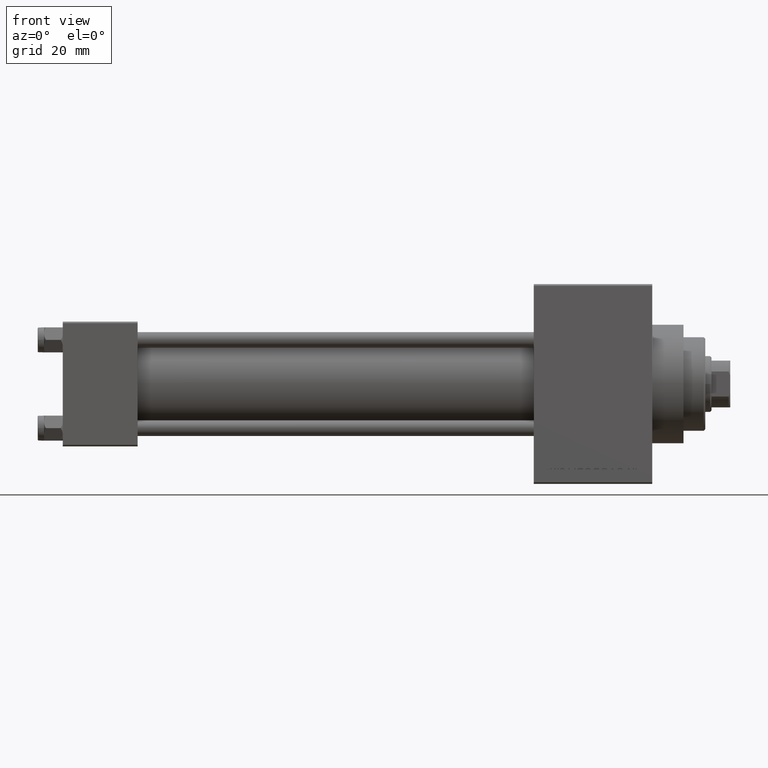
[diagram: clean part render]
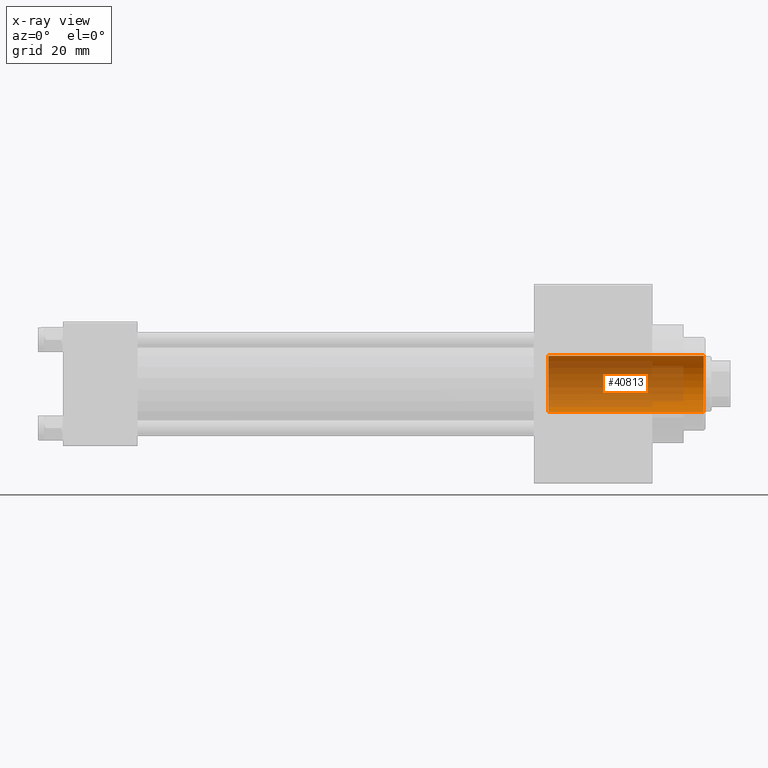
[diagram: x-ray — body ghosted, one internal face saturated and labeled with its STEP entity id]
A machine part, front view, then the same camera in x-ray: the body is ghosted and one INTERNAL B-rep face — a face not visible from any outside direction — is saturated and labeled: STEP entity #40813.
In plain terms, the highlighted cylindrical surface (edge-blend (fillet) strip) has radius 9 mm, axis along (1, -0, -0).
Its self-contained STEP definition (entity closure, byte-faithful):
#190 = EDGE_CURVE ( 'NONE', #27990, #44670, #41054, .T. ) ;
#2247 = DIRECTION ( 'NONE',  ( 1.000000000000000000, 0.000000000000000000, 0.000000000000000000 ) ) ;
#2536 = ORIENTED_EDGE ( 'NONE', *, *, #36860, .T. ) ;
#2618 = CARTESIAN_POINT ( 'NONE',  ( 0.000000000000000000, 0.000000000000000000, -25.45584412271570329 ) ) ;
#2842 = CYLINDRICAL_SURFACE ( 'NONE', #43318, 9.000000000000000000 ) ;
#6377 = EDGE_CURVE ( 'NONE', #27199, #44670, #15836, .T. ) ;
#8882 = DIRECTION ( 'NONE',  ( -0.000000000000000000, -0.000000000000000000, 1.000000000000000000 ) ) ;
#9090 = VECTOR ( 'NONE', #8882, 1000.000000000000000 ) ;
#10606 = AXIS2_PLACEMENT_3D ( 'NONE', #27737, #17474, #2247 ) ;
#11260 = ORIENTED_EDGE ( 'NONE', *, *, #43303, .F. ) ;
#11576 = ORIENTED_EDGE ( 'NONE', *, *, #190, .F. ) ;
#11878 = DIRECTION ( 'NONE',  ( 1.000000000000000000, 0.000000000000000000, 0.000000000000000000 ) ) ;
#14625 = CARTESIAN_POINT ( 'NONE',  ( 9.000000000000000000, 0.000000000000000000, 0.000000000000000000 ) ) ;
#15610 = EDGE_LOOP ( 'NONE', ( #2536, #34457, #11576, #11260 ) ) ;
#15789 = CARTESIAN_POINT ( 'NONE',  ( 9.000000000000000000, 0.000000000000000000, -25.45584412271570329 ) ) ;
#15836 = LINE ( 'NONE', #26567, #18814 ) ;
#16676 = FACE_OUTER_BOUND ( 'NONE', #15610, .T. ) ;
#17141 = DIRECTION ( 'NONE',  ( -0.000000000000000000, -0.000000000000000000, 1.000000000000000000 ) ) ;
#17370 = DIRECTION ( 'NONE',  ( 1.000000000000000000, 0.000000000000000000, 0.000000000000000000 ) ) ;
#17474 = DIRECTION ( 'NONE',  ( -0.000000000000000000, -0.000000000000000000, -1.000000000000000000 ) ) ;
#18814 = VECTOR ( 'NONE', #22752, 1000.000000000000000 ) ;
#20024 = CARTESIAN_POINT ( 'NONE',  ( 9.000000000000000000, 0.000000000000000000, 49.75999999999999801 ) ) ;
#22663 = AXIS2_PLACEMENT_3D ( 'NONE', #29988, #23074, #11878 ) ;
#22752 = DIRECTION ( 'NONE',  ( -0.000000000000000000, -0.000000000000000000, 1.000000000000000000 ) ) ;
#23074 = DIRECTION ( 'NONE',  ( -0.000000000000000000, -0.000000000000000000, -1.000000000000000000 ) ) ;
#26567 = CARTESIAN_POINT ( 'NONE',  ( -9.000000000000000000, 1.102182119232617714E-15, -25.45584412271570329 ) ) ;
#27199 = VERTEX_POINT ( 'NONE', #28281 ) ;
#27737 = CARTESIAN_POINT ( 'NONE',  ( 0.000000000000000000, 0.000000000000000000, 49.75999999999999801 ) ) ;
#27990 = VERTEX_POINT ( 'NONE', #20024 ) ;
#28281 = CARTESIAN_POINT ( 'NONE',  ( -9.000000000000000000, 1.102182119232617714E-15, 0.000000000000000000 ) ) ;
#29988 = CARTESIAN_POINT ( 'NONE',  ( 0.000000000000000000, 0.000000000000000000, 0.000000000000000000 ) ) ;
#33296 = CIRCLE ( 'NONE', #22663, 9.000000000000000000 ) ;
#34457 = ORIENTED_EDGE ( 'NONE', *, *, #6377, .T. ) ;
#36860 = EDGE_CURVE ( 'NONE', #43140, #27199, #33296, .T. ) ;
#40774 = CARTESIAN_POINT ( 'NONE',  ( -9.000000000000000000, 1.102182119232617714E-15, 49.75999999999999801 ) ) ;
#40813 = ADVANCED_FACE ( 'NONE', ( #16676 ), #2842, .F. ) ;
#41054 = CIRCLE ( 'NONE', #10606, 9.000000000000000000 ) ;
#43140 = VERTEX_POINT ( 'NONE', #14625 ) ;
#43303 = EDGE_CURVE ( 'NONE', #43140, #27990, #44847, .T. ) ;
#43318 = AXIS2_PLACEMENT_3D ( 'NONE', #2618, #17141, #17370 ) ;
#44670 = VERTEX_POINT ( 'NONE', #40774 ) ;
#44847 = LINE ( 'NONE', #15789, #9090 ) ;